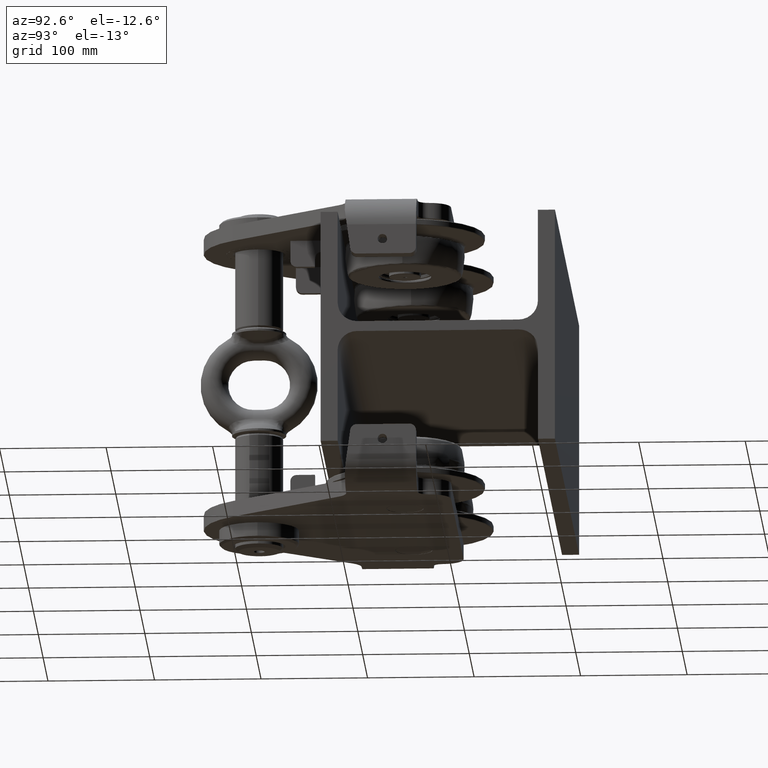
[diagram: clean part render]
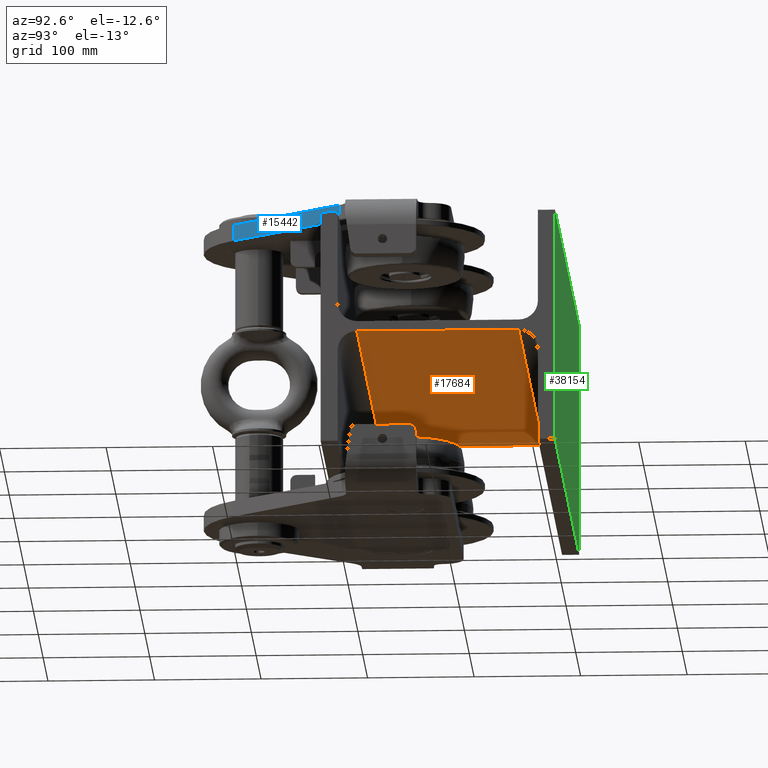
[diagram: same view with three faces highlighted in distinct colors, each labeled with its STEP entity id]
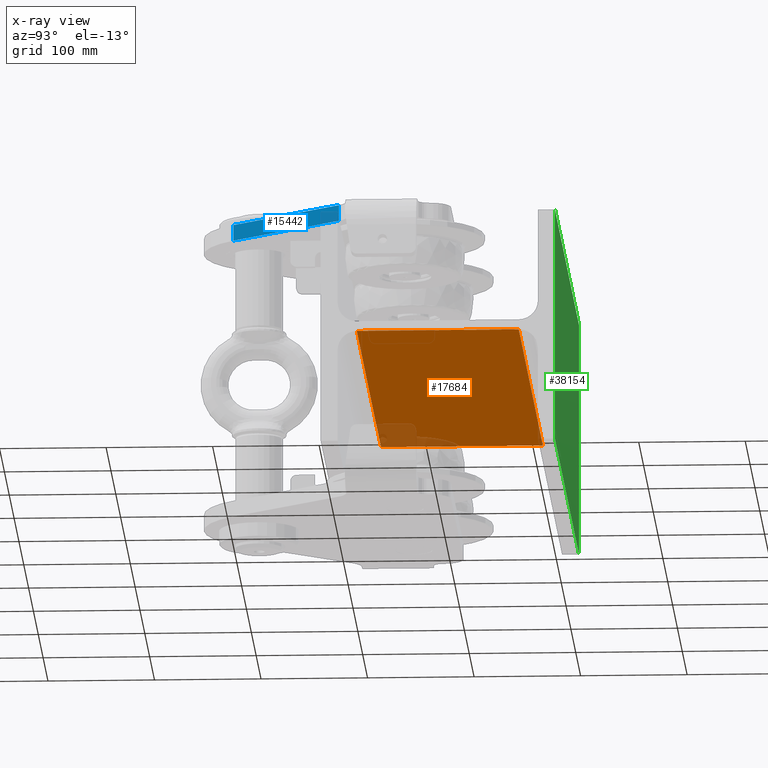
[diagram: x-ray of the same camera — body ghosted, the three highlighted faces saturated]
A machine part, auxiliary view with three faces highlighted in distinct colors.
The next image is the same camera in x-ray (body ghosted, the three faces saturated) — at least one of them is partly hidden behind the body in this view.
Their STEP definitions:

[orange] entity #17684 — the highlighted planar face has unit normal (0, 0, -1).
#1753 = CARTESIAN_POINT ( 'NONE',  ( -250.0000000000004000, -75.99999999999984400, -4.749999999999960900 ) ) ;
#5506 = VECTOR ( 'NONE', #37436, 1000.000000000000000 ) ;
#5870 = LINE ( 'NONE', #25694, #42017 ) ;
#6303 = PLANE ( 'NONE',  #7248 ) ;
#6378 = DIRECTION ( 'NONE',  ( 0.0000000000000000000, 1.000000000000000000, 4.293176542341493300E-017 ) ) ;
#7248 = AXIS2_PLACEMENT_3D ( 'NONE', #32052, #15634, #25216 ) ;
#7793 = CARTESIAN_POINT ( 'NONE',  ( -250.0000000000004000, -75.99999999999984400, -4.749999999999960900 ) ) ;
#11469 = DIRECTION ( 'NONE',  ( 1.000000000000000000, 0.0000000000000000000, 7.703719777548941700E-034 ) ) ;
#12155 = ORIENTED_EDGE ( 'NONE', *, *, #39453, .F. ) ;
#14911 = ORIENTED_EDGE ( 'NONE', *, *, #15124, .T. ) ;
#15124 = EDGE_CURVE ( 'NONE', #21309, #32557, #37843, .T. ) ;
#15634 = DIRECTION ( 'NONE',  ( 7.703719777548941700E-034, 4.293176542341593700E-017, -1.000000000000000000 ) ) ;
#16023 = VERTEX_POINT ( 'NONE', #18061 ) ;
#17684 = ADVANCED_FACE ( 'NONE', ( #40060 ), #6303, .T. ) ;
#17921 = DIRECTION ( 'NONE',  ( 1.000000000000000000, 0.0000000000000000000, 7.703719777548941700E-034 ) ) ;
#18061 = CARTESIAN_POINT ( 'NONE',  ( 249.9999999999997200, -75.99999999999984400, -4.749999999999960900 ) ) ;
#19321 = LINE ( 'NONE', #7793, #5506 ) ;
#19745 = LINE ( 'NONE', #1753, #21274 ) ;
#21274 = VECTOR ( 'NONE', #11469, 1000.000000000000000 ) ;
#21309 = VERTEX_POINT ( 'NONE', #34360 ) ;
#23765 = EDGE_CURVE ( 'NONE', #16023, #32557, #5870, .T. ) ;
#25216 = DIRECTION ( 'NONE',  ( -1.000000000000000000, 0.0000000000000000000, -7.703719777548941700E-034 ) ) ;
#25638 = CARTESIAN_POINT ( 'NONE',  ( 249.9999999999997200, 76.00000000000005700, -4.749999999999940500 ) ) ;
#25694 = CARTESIAN_POINT ( 'NONE',  ( 249.9999999999997200, -75.99999999999984400, -4.749999999999960900 ) ) ;
#31026 = VERTEX_POINT ( 'NONE', #39930 ) ;
#32052 = CARTESIAN_POINT ( 'NONE',  ( -250.0000000000004000, -75.99999999999984400, -4.749999999999960900 ) ) ;
#32557 = VERTEX_POINT ( 'NONE', #25638 ) ;
#33374 = ORIENTED_EDGE ( 'NONE', *, *, #23765, .F. ) ;
#33613 = EDGE_CURVE ( 'NONE', #31026, #21309, #19321, .T. ) ;
#34264 = VECTOR ( 'NONE', #17921, 1000.000000000000000 ) ;
#34360 = CARTESIAN_POINT ( 'NONE',  ( -250.0000000000004000, 76.00000000000005700, -4.749999999999940500 ) ) ;
#37398 = CARTESIAN_POINT ( 'NONE',  ( -250.0000000000004000, 76.00000000000005700, -4.749999999999940500 ) ) ;
#37436 = DIRECTION ( 'NONE',  ( 0.0000000000000000000, 1.000000000000000000, 4.293176542341493300E-017 ) ) ;
#37596 = ORIENTED_EDGE ( 'NONE', *, *, #33613, .T. ) ;
#37843 = LINE ( 'NONE', #37398, #34264 ) ;
#39453 = EDGE_CURVE ( 'NONE', #31026, #16023, #19745, .T. ) ;
#39930 = CARTESIAN_POINT ( 'NONE',  ( -250.0000000000004000, -75.99999999999984400, -4.749999999999960900 ) ) ;
#40060 = FACE_OUTER_BOUND ( 'NONE', #40705, .T. ) ;
#40705 = EDGE_LOOP ( 'NONE', ( #33374, #12155, #37596, #14911 ) ) ;
#42017 = VECTOR ( 'NONE', #6378, 1000.000000000000000 ) ;

[blue] entity #15442 — the highlighted planar face has unit normal (0.7852, -0.6193, -0).
#586 = EDGE_CURVE ( 'NONE', #15229, #8300, #34445, .T. ) ;
#2005 = LINE ( 'NONE', #11397, #31016 ) ;
#2822 = ORIENTED_EDGE ( 'NONE', *, *, #16980, .F. ) ;
#3672 = VERTEX_POINT ( 'NONE', #4132 ) ;
#4132 = CARTESIAN_POINT ( 'NONE',  ( 62.81381021161562500, -200.5421562580709700, 140.0000000000000000 ) ) ;
#4497 = EDGE_LOOP ( 'NONE', ( #39539, #14411, #2822, #36127 ) ) ;
#8151 = CARTESIAN_POINT ( 'NONE',  ( 143.9943650573695800, -97.61446093548204300, 82.00000000000000000 ) ) ;
#8300 = VERTEX_POINT ( 'NONE', #23067 ) ;
#10369 = VERTEX_POINT ( 'NONE', #15816 ) ;
#11318 = PLANE ( 'NONE',  #41428 ) ;
#11327 = FACE_OUTER_BOUND ( 'NONE', #4497, .T. ) ;
#11397 = CARTESIAN_POINT ( 'NONE',  ( 62.81381021161562500, -200.5421562580709700, 82.00000000000000000 ) ) ;
#14411 = ORIENTED_EDGE ( 'NONE', *, *, #38404, .F. ) ;
#15229 = VERTEX_POINT ( 'NONE', #15341 ) ;
#15294 = CARTESIAN_POINT ( 'NONE',  ( 87.19281609471916300, -169.6323540945923000, 125.0000000000000000 ) ) ;
#15341 = CARTESIAN_POINT ( 'NONE',  ( 143.9943650573695500, -97.61446093548204300, 125.0000000000000000 ) ) ;
#15442 = ADVANCED_FACE ( 'NONE', ( #11327 ), #11318, .T. ) ;
#15816 = CARTESIAN_POINT ( 'NONE',  ( 62.81381021161562500, -200.5421562580709700, 125.0000000000000000 ) ) ;
#16182 = VECTOR ( 'NONE', #36776, 1000.000000000000000 ) ;
#16980 = EDGE_CURVE ( 'NONE', #10369, #3672, #2005, .T. ) ;
#18954 = EDGE_CURVE ( 'NONE', #15229, #10369, #41469, .T. ) ;
#21132 = VECTOR ( 'NONE', #38554, 1000.000000000000000 ) ;
#21610 = VECTOR ( 'NONE', #37754, 1000.000000000000000 ) ;
#23067 = CARTESIAN_POINT ( 'NONE',  ( 143.9943650573695500, -97.61446093548204300, 140.0000000000000000 ) ) ;
#31016 = VECTOR ( 'NONE', #39997, 1000.000000000000000 ) ;
#33334 = CARTESIAN_POINT ( 'NONE',  ( 143.9943650573695500, -97.61446093548204300, 82.00000000000000000 ) ) ;
#33895 = DIRECTION ( 'NONE',  ( 0.6192769532258889400, 0.7851726276451950200, 4.054940984579461700E-018 ) ) ;
#34445 = LINE ( 'NONE', #33334, #16182 ) ;
#35905 = LINE ( 'NONE', #38695, #21132 ) ;
#36127 = ORIENTED_EDGE ( 'NONE', *, *, #18954, .F. ) ;
#36776 = DIRECTION ( 'NONE',  ( 7.198470905858327200E-017, -6.193977041085480200E-017, 1.000000000000000000 ) ) ;
#37754 = DIRECTION ( 'NONE',  ( -0.6192769532258889400, -0.7851726276451950200, -4.054940984579461700E-018 ) ) ;
#38404 = EDGE_CURVE ( 'NONE', #3672, #8300, #35905, .T. ) ;
#38554 = DIRECTION ( 'NONE',  ( 0.6192769532258890500, 0.7851726276451950200, 4.054940984579450900E-018 ) ) ;
#38695 = CARTESIAN_POINT ( 'NONE',  ( 143.9943650573695800, -97.61446093548204300, 140.0000000000000000 ) ) ;
#39539 = ORIENTED_EDGE ( 'NONE', *, *, #586, .T. ) ;
#39997 = DIRECTION ( 'NONE',  ( 7.198470905858327200E-017, -6.193977041085480200E-017, 1.000000000000000000 ) ) ;
#40751 = DIRECTION ( 'NONE',  ( 0.7851726276451950200, -0.6192769532258889400, -9.487829546534790100E-017 ) ) ;
#41428 = AXIS2_PLACEMENT_3D ( 'NONE', #8151, #40751, #33895 ) ;
#41469 = LINE ( 'NONE', #15294, #21610 ) ;

[green] entity #38154 — the highlighted planar face has unit normal (-0, 1, 0).
#215 = CARTESIAN_POINT ( 'NONE',  ( -250.0000000000004000, 110.0000000000001400, -109.9999999999999400 ) ) ;
#1527 = DIRECTION ( 'NONE',  ( 1.000000000000000000, 0.0000000000000000000, 7.703719777548941700E-034 ) ) ;
#1681 = EDGE_CURVE ( 'NONE', #34593, #39804, #42104, .T. ) ;
#2144 = CARTESIAN_POINT ( 'NONE',  ( -250.0000000000004000, 110.0000000000001400, 110.0000000000000700 ) ) ;
#6302 = CARTESIAN_POINT ( 'NONE',  ( -250.0000000000004000, 110.0000000000001400, 110.0000000000000700 ) ) ;
#6737 = PLANE ( 'NONE',  #24906 ) ;
#7091 = VERTEX_POINT ( 'NONE', #39578 ) ;
#8127 = CARTESIAN_POINT ( 'NONE',  ( -250.0000000000004000, 110.0000000000001400, -109.9999999999999400 ) ) ;
#8461 = ORIENTED_EDGE ( 'NONE', *, *, #20466, .T. ) ;
#9606 = DIRECTION ( 'NONE',  ( -3.307342903774534100E-050, 1.000000000000000000, 4.293176542341493300E-017 ) ) ;
#13633 = FACE_OUTER_BOUND ( 'NONE', #26751, .T. ) ;
#13834 = LINE ( 'NONE', #20997, #32086 ) ;
#14814 = CARTESIAN_POINT ( 'NONE',  ( -250.0000000000004000, 110.0000000000001400, -109.9999999999999400 ) ) ;
#15868 = LINE ( 'NONE', #30940, #26975 ) ;
#15945 = EDGE_CURVE ( 'NONE', #34593, #26871, #13834, .T. ) ;
#17764 = VECTOR ( 'NONE', #32341, 1000.000000000000000 ) ;
#20466 = EDGE_CURVE ( 'NONE', #39804, #7091, #27859, .T. ) ;
#20997 = CARTESIAN_POINT ( 'NONE',  ( -250.0000000000004000, 110.0000000000001400, -109.9999999999999400 ) ) ;
#22833 = DIRECTION ( 'NONE',  ( 1.000000000000000000, 0.0000000000000000000, 7.703719777548941700E-034 ) ) ;
#24404 = DIRECTION ( 'NONE',  ( -1.925929944387235900E-034, -4.293176542341593100E-017, 1.000000000000000000 ) ) ;
#24906 = AXIS2_PLACEMENT_3D ( 'NONE', #215, #9606, #22833 ) ;
#26751 = EDGE_LOOP ( 'NONE', ( #33261, #29434, #32312, #8461 ) ) ;
#26871 = VERTEX_POINT ( 'NONE', #31469 ) ;
#26975 = VECTOR ( 'NONE', #24404, 1000.000000000000000 ) ;
#27859 = LINE ( 'NONE', #6302, #17764 ) ;
#28897 = VECTOR ( 'NONE', #31087, 1000.000000000000000 ) ;
#29434 = ORIENTED_EDGE ( 'NONE', *, *, #15945, .F. ) ;
#30940 = CARTESIAN_POINT ( 'NONE',  ( 249.9999999999997200, 110.0000000000001400, -109.9999999999999400 ) ) ;
#31087 = DIRECTION ( 'NONE',  ( -1.925929944387235900E-034, -4.293176542341593100E-017, 1.000000000000000000 ) ) ;
#31469 = CARTESIAN_POINT ( 'NONE',  ( 249.9999999999997200, 110.0000000000001400, -109.9999999999999400 ) ) ;
#32086 = VECTOR ( 'NONE', #1527, 1000.000000000000000 ) ;
#32312 = ORIENTED_EDGE ( 'NONE', *, *, #1681, .T. ) ;
#32341 = DIRECTION ( 'NONE',  ( 1.000000000000000000, 0.0000000000000000000, 7.703719777548941700E-034 ) ) ;
#33261 = ORIENTED_EDGE ( 'NONE', *, *, #41471, .F. ) ;
#34593 = VERTEX_POINT ( 'NONE', #8127 ) ;
#38154 = ADVANCED_FACE ( 'NONE', ( #13633 ), #6737, .T. ) ;
#39578 = CARTESIAN_POINT ( 'NONE',  ( 249.9999999999997200, 110.0000000000001400, 110.0000000000000700 ) ) ;
#39804 = VERTEX_POINT ( 'NONE', #2144 ) ;
#41471 = EDGE_CURVE ( 'NONE', #26871, #7091, #15868, .T. ) ;
#42104 = LINE ( 'NONE', #14814, #28897 ) ;